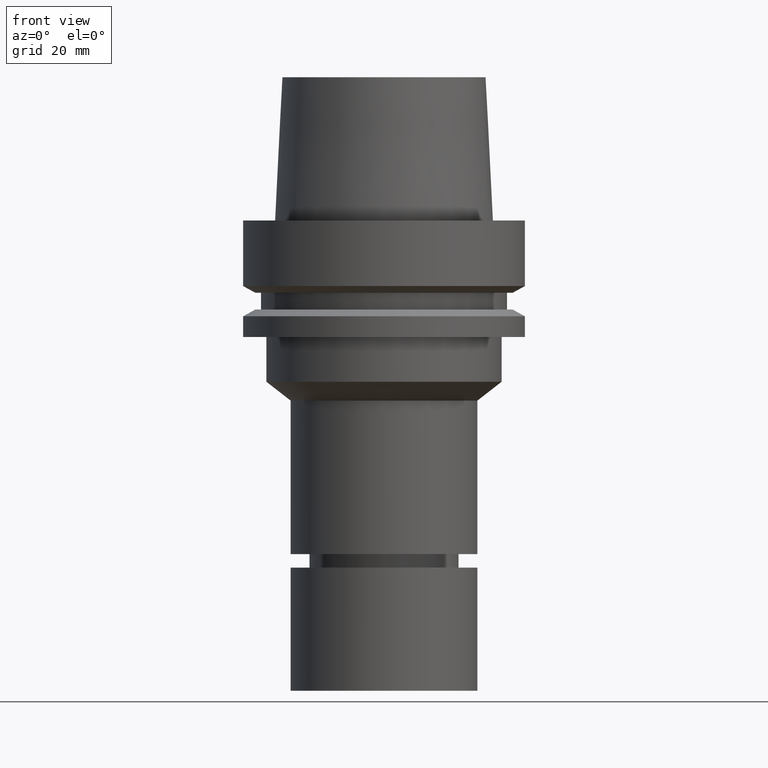
[diagram: clean part render]
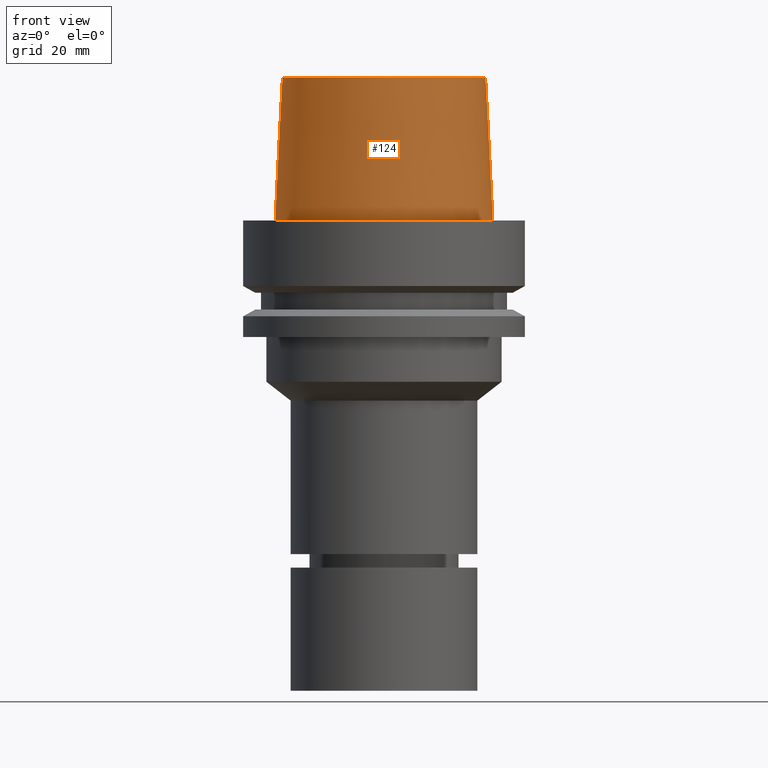
[diagram: same view with one face highlighted and labeled with its STEP entity id]
A machine part, front view. The second image highlights one B-rep face of the part: STEP entity #124.
In plain terms, the highlighted conical surface has half-angle 2.862 deg.
Its self-contained STEP definition (entity closure, byte-faithful):
#83=EDGE_CURVE('Unnamed[1]',#221,#221,#222,.T.);
#124=ADVANCED_FACE('Unnamed[1]',(#284,#285),#286,.T.);
#154=EDGE_CURVE('Unnamed[1]',#333,#333,#334,.T.);
#221=VERTEX_POINT('',#415);
#222=CIRCLE('',#416,22.715);
#284=FACE_BOUND('',#492,.T.);
#285=FACE_BOUND('',#493,.T.);
#286=CONICAL_SURFACE('',#494,23.515,0.0499583957219433);
#333=VERTEX_POINT('',#553);
#334=CIRCLE('',#554,24.315);
#415=CARTESIAN_POINT('',(-1.95943487863576E-015,22.715,32.0));
#416=AXIS2_PLACEMENT_3D('',#636,#637,#638);
#492=EDGE_LOOP('',(#706));
#493=EDGE_LOOP('',(#707));
#494=AXIS2_PLACEMENT_3D('',#708,#709,#710);
#553=CARTESIAN_POINT('',(-2.99705514225764E-031,24.315,2.97772869212679E-015));
#554=AXIS2_PLACEMENT_3D('',#762,#763,#764);
#636=CARTESIAN_POINT('',(-1.95943487863576E-015,-3.91886975727153E-015,32.0));
#637=DIRECTION('',(-6.12323399573676E-017,-1.22464679914735E-016,1.0));
#638=DIRECTION('',(-1.23259516440783E-032,1.0,1.22464679914735E-016));
#706=ORIENTED_EDGE('',*,*,#83,.F.);
#707=ORIENTED_EDGE('',*,*,#154,.T.);
#708=CARTESIAN_POINT('',(-9.79717439317882E-016,-1.95943487863576E-015,16.0));
#709=DIRECTION('',(6.12323399573677E-017,1.22464679914735E-016,-1.0));
#710=DIRECTION('',(-1.23259516440783E-032,1.0,1.22464679914735E-016));
#762=CARTESIAN_POINT('',(0.0,0.0,0.0));
#763=DIRECTION('',(-6.12323399573677E-017,-1.22464679914735E-016,1.0));
#764=DIRECTION('',(-1.23259516440783E-032,1.0,1.22464679914735E-016));